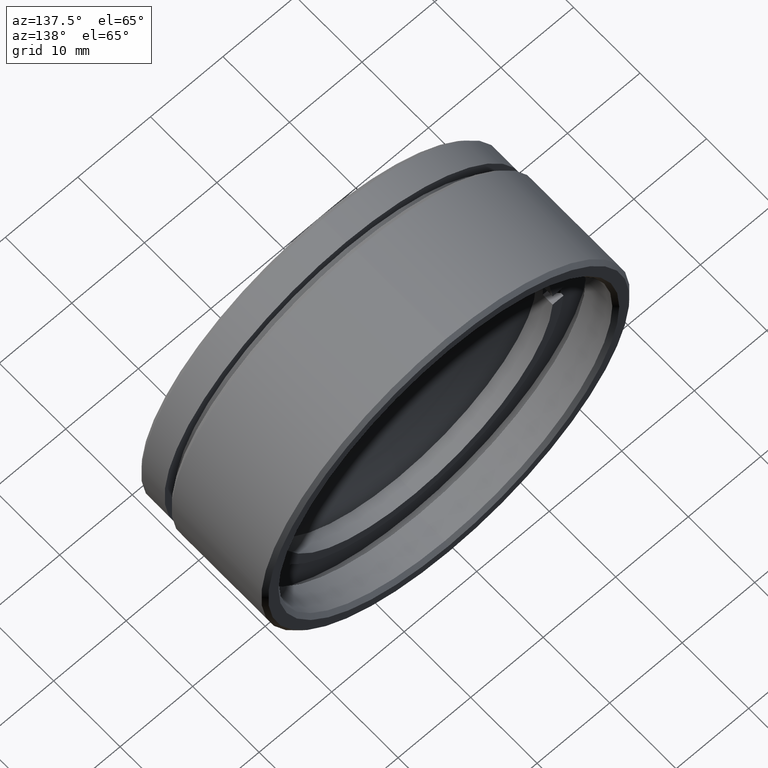
[diagram: clean part render]
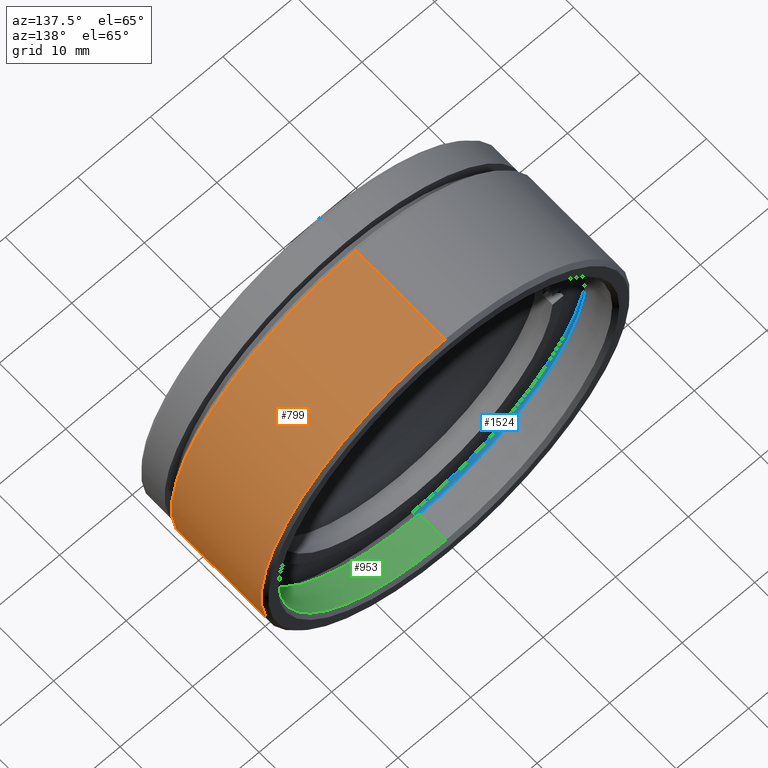
[diagram: same view with three faces highlighted in distinct colors, each labeled with its STEP entity id]
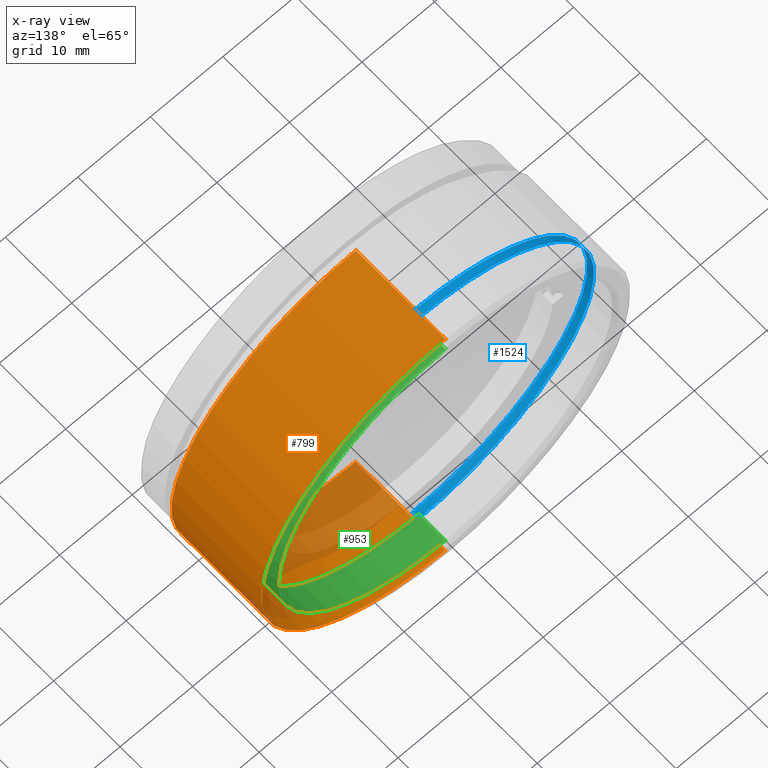
[diagram: x-ray of the same camera — body ghosted, the three highlighted faces saturated]
A machine part, auxiliary view with three faces highlighted in distinct colors.
The next image is the same camera in x-ray (body ghosted, the three faces saturated) — at least one of them is partly hidden behind the body in this view.
Their STEP definitions:

[orange] entity #799 — the highlighted cylindrical surface (partial cylindrical patch) has radius 25.4 mm, axis along (0, -1, 0).
#58 = DIRECTION ( 'NONE',  ( 0.000000000000000000, 0.000000000000000000, -1.000000000000000000 ) ) ;
#193 = DIRECTION ( 'NONE',  ( 0.000000000000000000, -1.000000000000000000, 0.000000000000000000 ) ) ;
#206 = LINE ( 'NONE', #882, #659 ) ;
#215 = DIRECTION ( 'NONE',  ( 0.000000000000000000, 0.000000000000000000, -1.000000000000000000 ) ) ;
#293 = ORIENTED_EDGE ( 'NONE', *, *, #735, .T. ) ;
#316 = DIRECTION ( 'NONE',  ( 0.000000000000000000, -1.000000000000000000, 0.000000000000000000 ) ) ;
#323 = FACE_OUTER_BOUND ( 'NONE', #569, .T. ) ;
#331 = EDGE_CURVE ( 'NONE', #1594, #513, #589, .T. ) ;
#513 = VERTEX_POINT ( 'NONE', #551 ) ;
#529 = AXIS2_PLACEMENT_3D ( 'NONE', #1138, #1033, #215 ) ;
#551 = CARTESIAN_POINT ( 'NONE',  ( -8.905217641199437040, -3.498993789101623175, 52.05036394347455087 ) ) ;
#567 = DIRECTION ( 'NONE',  ( 0.000000000000000000, 0.000000000000000000, -1.000000000000000000 ) ) ;
#569 = EDGE_LOOP ( 'NONE', ( #1208, #293, #1179, #1434 ) ) ;
#589 = CIRCLE ( 'NONE', #529, 25.39999999999999858 ) ;
#659 = VECTOR ( 'NONE', #316, 1000.000000000000000 ) ;
#724 = AXIS2_PLACEMENT_3D ( 'NONE', #1395, #193, #567 ) ;
#735 = EDGE_CURVE ( 'NONE', #513, #1155, #206, .T. ) ;
#774 = CARTESIAN_POINT ( 'NONE',  ( -8.905217641199440592, -16.99899378910162184, 52.05036394347455087 ) ) ;
#799 = ADVANCED_FACE ( 'NONE', ( #323 ), #1132, .T. ) ;
#834 = CIRCLE ( 'NONE', #724, 25.39999999999999858 ) ;
#856 = AXIS2_PLACEMENT_3D ( 'NONE', #857, #1392, #58 ) ;
#857 = CARTESIAN_POINT ( 'NONE',  ( -8.905217641199440592, -22.49899378910162184, 26.65036394347454873 ) ) ;
#882 = CARTESIAN_POINT ( 'NONE',  ( -8.905217641199437040, -22.49899378910162184, 52.05036394347455087 ) ) ;
#972 = CARTESIAN_POINT ( 'NONE',  ( -8.905217641199440592, -22.49899378910162184, 1.250363943474549266 ) ) ;
#1033 = DIRECTION ( 'NONE',  ( 0.000000000000000000, -1.000000000000000000, 0.000000000000000000 ) ) ;
#1073 = EDGE_CURVE ( 'NONE', #1369, #1155, #834, .T. ) ;
#1104 = LINE ( 'NONE', #972, #1718 ) ;
#1132 = CYLINDRICAL_SURFACE ( 'NONE', #856, 25.39999999999999858 ) ;
#1138 = CARTESIAN_POINT ( 'NONE',  ( -8.905217641199440592, -3.498993789101623175, 26.65036394347454873 ) ) ;
#1155 = VERTEX_POINT ( 'NONE', #774 ) ;
#1179 = ORIENTED_EDGE ( 'NONE', *, *, #1073, .F. ) ;
#1208 = ORIENTED_EDGE ( 'NONE', *, *, #331, .T. ) ;
#1211 = CARTESIAN_POINT ( 'NONE',  ( -8.905217641199437040, -16.99899378910162184, 1.250363943474549266 ) ) ;
#1352 = DIRECTION ( 'NONE',  ( 0.000000000000000000, -1.000000000000000000, 0.000000000000000000 ) ) ;
#1369 = VERTEX_POINT ( 'NONE', #1211 ) ;
#1392 = DIRECTION ( 'NONE',  ( 0.000000000000000000, -1.000000000000000000, 0.000000000000000000 ) ) ;
#1395 = CARTESIAN_POINT ( 'NONE',  ( -8.905217641199440592, -16.99899378910162184, 26.65036394347454873 ) ) ;
#1411 = EDGE_CURVE ( 'NONE', #1594, #1369, #1104, .T. ) ;
#1434 = ORIENTED_EDGE ( 'NONE', *, *, #1411, .F. ) ;
#1594 = VERTEX_POINT ( 'NONE', #1644 ) ;
#1644 = CARTESIAN_POINT ( 'NONE',  ( -8.905217641199440592, -3.498993789101623175, 1.250363943474549266 ) ) ;
#1718 = VECTOR ( 'NONE', #1352, 1000.000000000000000 ) ;

[blue] entity #1524 — the highlighted cylindrical surface (partial cylindrical patch) has radius 24.15 mm, axis along (0, -1, 0).
#90 = LINE ( 'NONE', #1678, #1088 ) ;
#180 = AXIS2_PLACEMENT_3D ( 'NONE', #718, #474, #1403 ) ;
#181 = CARTESIAN_POINT ( 'NONE',  ( -8.905217641199440592, -8.498993789101621843, 2.500363943474547046 ) ) ;
#226 = DIRECTION ( 'NONE',  ( 0.000000000000000000, 0.000000000000000000, -1.000000000000000000 ) ) ;
#299 = ORIENTED_EDGE ( 'NONE', *, *, #1368, .F. ) ;
#348 = LINE ( 'NONE', #1659, #974 ) ;
#402 = VERTEX_POINT ( 'NONE', #1537 ) ;
#474 = DIRECTION ( 'NONE',  ( 0.000000000000000000, -1.000000000000000000, 0.000000000000000000 ) ) ;
#478 = DIRECTION ( 'NONE',  ( 0.000000000000000000, -1.000000000000000000, 0.000000000000000000 ) ) ;
#494 = CIRCLE ( 'NONE', #1036, 24.15000000000000213 ) ;
#675 = DIRECTION ( 'NONE',  ( 0.000000000000000000, 0.000000000000000000, -1.000000000000000000 ) ) ;
#718 = CARTESIAN_POINT ( 'NONE',  ( -8.905217641199440592, -22.49899378910162184, 26.65036394347454873 ) ) ;
#767 = VERTEX_POINT ( 'NONE', #181 ) ;
#808 = ORIENTED_EDGE ( 'NONE', *, *, #1213, .T. ) ;
#880 = CYLINDRICAL_SURFACE ( 'NONE', #180, 24.15000000000000213 ) ;
#915 = CARTESIAN_POINT ( 'NONE',  ( -8.905217641199440592, -7.498993789101623619, 2.500363943474547046 ) ) ;
#929 = CARTESIAN_POINT ( 'NONE',  ( -8.905217641199440592, -8.498993789101621843, 26.65036394347454873 ) ) ;
#974 = VECTOR ( 'NONE', #478, 1000.000000000000000 ) ;
#979 = VERTEX_POINT ( 'NONE', #1365 ) ;
#1036 = AXIS2_PLACEMENT_3D ( 'NONE', #1340, #1717, #675 ) ;
#1080 = CIRCLE ( 'NONE', #1301, 24.15000000000000213 ) ;
#1088 = VECTOR ( 'NONE', #1429, 1000.000000000000000 ) ;
#1213 = EDGE_CURVE ( 'NONE', #402, #979, #348, .T. ) ;
#1234 = EDGE_CURVE ( 'NONE', #1251, #767, #90, .T. ) ;
#1251 = VERTEX_POINT ( 'NONE', #915 ) ;
#1253 = FACE_OUTER_BOUND ( 'NONE', #1314, .T. ) ;
#1293 = ORIENTED_EDGE ( 'NONE', *, *, #1654, .T. ) ;
#1301 = AXIS2_PLACEMENT_3D ( 'NONE', #929, #1557, #226 ) ;
#1314 = EDGE_LOOP ( 'NONE', ( #299, #808, #1293, #1373 ) ) ;
#1340 = CARTESIAN_POINT ( 'NONE',  ( -8.905217641199440592, -7.498993789101623619, 26.65036394347454873 ) ) ;
#1365 = CARTESIAN_POINT ( 'NONE',  ( -8.905217641199437040, -8.498993789101621843, 50.80036394347455087 ) ) ;
#1368 = EDGE_CURVE ( 'NONE', #402, #1251, #494, .T. ) ;
#1373 = ORIENTED_EDGE ( 'NONE', *, *, #1234, .F. ) ;
#1403 = DIRECTION ( 'NONE',  ( 0.000000000000000000, 0.000000000000000000, -1.000000000000000000 ) ) ;
#1429 = DIRECTION ( 'NONE',  ( 0.000000000000000000, -1.000000000000000000, 0.000000000000000000 ) ) ;
#1524 = ADVANCED_FACE ( 'NONE', ( #1253 ), #880, .F. ) ;
#1537 = CARTESIAN_POINT ( 'NONE',  ( -8.905217641199437040, -7.498993789101623619, 50.80036394347455087 ) ) ;
#1557 = DIRECTION ( 'NONE',  ( 0.000000000000000000, -1.000000000000000000, 0.000000000000000000 ) ) ;
#1654 = EDGE_CURVE ( 'NONE', #979, #767, #1080, .T. ) ;
#1659 = CARTESIAN_POINT ( 'NONE',  ( -8.905217641199437040, -22.49899378910162184, 50.80036394347455087 ) ) ;
#1678 = CARTESIAN_POINT ( 'NONE',  ( -8.905217641199440592, -22.49899378910162184, 2.500363943474547046 ) ) ;
#1717 = DIRECTION ( 'NONE',  ( 0.000000000000000000, -1.000000000000000000, 0.000000000000000000 ) ) ;

[green] entity #953 — the highlighted cylindrical surface (partial cylindrical patch) has radius 23 mm, axis along (0, -1, 0).
#45 = DIRECTION ( 'NONE',  ( 0.000000000000000000, 0.000000000000000000, 1.000000000000000000 ) ) ;
#52 = FACE_OUTER_BOUND ( 'NONE', #1612, .T. ) ;
#53 = CIRCLE ( 'NONE', #890, 23.00000000000000000 ) ;
#60 = DIRECTION ( 'NONE',  ( 0.000000000000000000, 0.000000000000000000, -1.000000000000000000 ) ) ;
#77 = CARTESIAN_POINT ( 'NONE',  ( -8.905217641199440592, -7.498993789101623619, 3.650363943474548734 ) ) ;
#349 = ORIENTED_EDGE ( 'NONE', *, *, #990, .T. ) ;
#356 = AXIS2_PLACEMENT_3D ( 'NONE', #730, #846, #60 ) ;
#366 = ORIENTED_EDGE ( 'NONE', *, *, #1252, .T. ) ;
#392 = VECTOR ( 'NONE', #560, 1000.000000000000000 ) ;
#400 = DIRECTION ( 'NONE',  ( 0.000000000000000000, 0.000000000000000000, -1.000000000000000000 ) ) ;
#459 = DIRECTION ( 'NONE',  ( 0.000000000000000000, 1.000000000000000000, 0.000000000000000000 ) ) ;
#477 = EDGE_CURVE ( 'NONE', #1402, #708, #1491, .T. ) ;
#482 = CARTESIAN_POINT ( 'NONE',  ( -8.905217641199437040, -7.498993789101623619, 49.65036394347455229 ) ) ;
#538 = DIRECTION ( 'NONE',  ( 0.000000000000000000, -1.000000000000000000, 0.000000000000000000 ) ) ;
#548 = EDGE_CURVE ( 'NONE', #725, #1588, #949, .T. ) ;
#560 = DIRECTION ( 'NONE',  ( 0.000000000000000000, -1.000000000000000000, 0.000000000000000000 ) ) ;
#594 = CARTESIAN_POINT ( 'NONE',  ( -8.905217641199437040, -3.498993789101623175, 49.65036394347455229 ) ) ;
#636 = VECTOR ( 'NONE', #538, 1000.000000000000000 ) ;
#708 = VERTEX_POINT ( 'NONE', #77 ) ;
#725 = VERTEX_POINT ( 'NONE', #594 ) ;
#730 = CARTESIAN_POINT ( 'NONE',  ( -8.905217641199440592, -22.49899378910162184, 26.65036394347454873 ) ) ;
#846 = DIRECTION ( 'NONE',  ( 0.000000000000000000, -1.000000000000000000, 0.000000000000000000 ) ) ;
#890 = AXIS2_PLACEMENT_3D ( 'NONE', #1090, #1705, #400 ) ;
#949 = LINE ( 'NONE', #1079, #636 ) ;
#953 = ADVANCED_FACE ( 'NONE', ( #52 ), #1629, .F. ) ;
#968 = ORIENTED_EDGE ( 'NONE', *, *, #477, .T. ) ;
#976 = CARTESIAN_POINT ( 'NONE',  ( -8.905217641199440592, -3.498993789101623175, 26.65036394347454873 ) ) ;
#990 = EDGE_CURVE ( 'NONE', #725, #1402, #1337, .T. ) ;
#1079 = CARTESIAN_POINT ( 'NONE',  ( -8.905217641199437040, -22.49899378910162184, 49.65036394347455229 ) ) ;
#1090 = CARTESIAN_POINT ( 'NONE',  ( -8.905217641199440592, -7.498993789101623619, 26.65036394347454873 ) ) ;
#1092 = CARTESIAN_POINT ( 'NONE',  ( -8.905217641199440592, -22.49899378910162184, 3.650363943474548734 ) ) ;
#1096 = CARTESIAN_POINT ( 'NONE',  ( -8.905217641199440592, -3.498993789101623175, 3.650363943474548734 ) ) ;
#1161 = ORIENTED_EDGE ( 'NONE', *, *, #548, .F. ) ;
#1252 = EDGE_CURVE ( 'NONE', #708, #1588, #53, .T. ) ;
#1337 = CIRCLE ( 'NONE', #1636, 23.00000000000000355 ) ;
#1402 = VERTEX_POINT ( 'NONE', #1096 ) ;
#1491 = LINE ( 'NONE', #1092, #392 ) ;
#1588 = VERTEX_POINT ( 'NONE', #482 ) ;
#1612 = EDGE_LOOP ( 'NONE', ( #1161, #349, #968, #366 ) ) ;
#1629 = CYLINDRICAL_SURFACE ( 'NONE', #356, 23.00000000000000000 ) ;
#1636 = AXIS2_PLACEMENT_3D ( 'NONE', #976, #459, #45 ) ;
#1705 = DIRECTION ( 'NONE',  ( 0.000000000000000000, -1.000000000000000000, 0.000000000000000000 ) ) ;